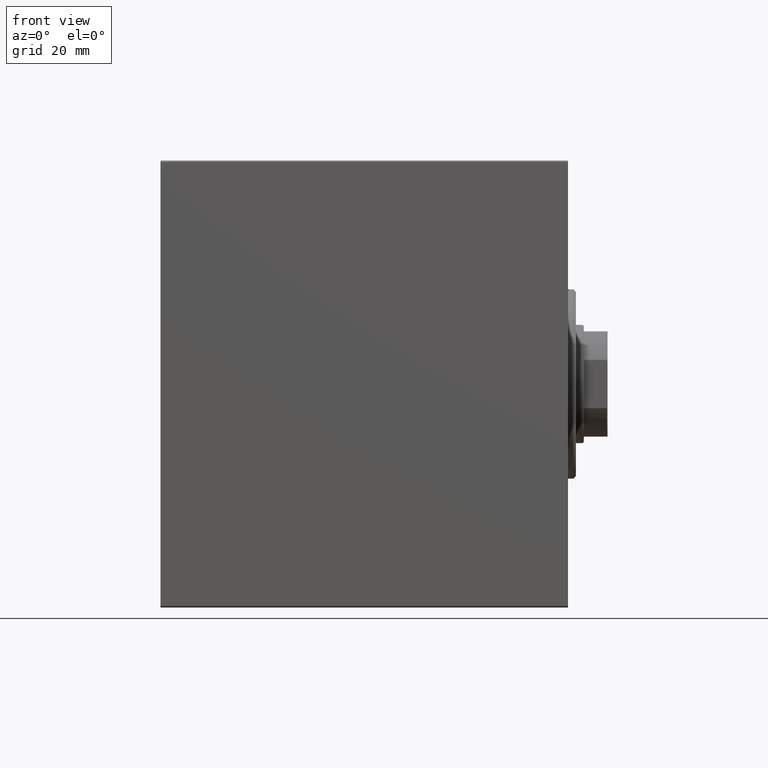
[diagram: clean part render]
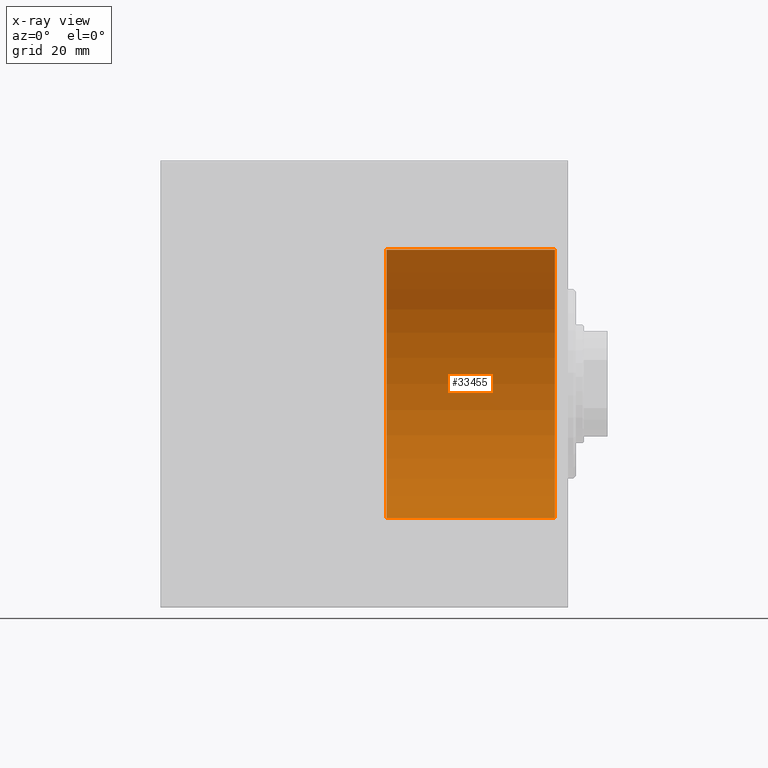
[diagram: x-ray — body ghosted, one internal face saturated and labeled with its STEP entity id]
A machine part, front view, then the same camera in x-ray: the body is ghosted and one INTERNAL B-rep face — a face not visible from any outside direction — is saturated and labeled: STEP entity #33455.
In plain terms, the highlighted cylindrical surface (partial cylindrical patch) has radius 51 mm, axis along (1, 0, 0).
Its self-contained STEP definition (entity closure, byte-faithful):
#469 = VERTEX_POINT ( 'NONE', #17164 ) ;
#743 = VERTEX_POINT ( 'NONE', #23395 ) ;
#1513 = VERTEX_POINT ( 'NONE', #31990 ) ;
#4595 = AXIS2_PLACEMENT_3D ( 'NONE', #7264, #33540, #9950 ) ;
#5583 = CARTESIAN_POINT ( 'NONE',  ( -69.00000000000000000, 6.245698675651500444E-15, 51.00000000000000000 ) ) ;
#6395 = DIRECTION ( 'NONE',  ( 0.000000000000000000, 0.000000000000000000, -1.000000000000000000 ) ) ;
#7264 = CARTESIAN_POINT ( 'NONE',  ( -5.000000000000000000, 0.000000000000000000, 0.000000000000000000 ) ) ;
#8480 = CARTESIAN_POINT ( 'NONE',  ( -69.00000000000000000, 0.000000000000000000, -51.00000000000000000 ) ) ;
#9823 = CARTESIAN_POINT ( 'NONE',  ( -69.00000000000000000, 0.000000000000000000, 0.000000000000000000 ) ) ;
#9950 = DIRECTION ( 'NONE',  ( 0.000000000000000000, 0.000000000000000000, 1.000000000000000000 ) ) ;
#12692 = CYLINDRICAL_SURFACE ( 'NONE', #38717, 51.00000000000000000 ) ;
#16135 = LINE ( 'NONE', #5583, #44155 ) ;
#17164 = CARTESIAN_POINT ( 'NONE',  ( -69.00000000000000000, 6.245698675651500444E-15, 51.00000000000000000 ) ) ;
#19405 = EDGE_CURVE ( 'NONE', #1513, #38790, #33278, .T. ) ;
#19659 = FACE_OUTER_BOUND ( 'NONE', #25599, .T. ) ;
#19723 = DIRECTION ( 'NONE',  ( 1.000000000000000000, -0.000000000000000000, -0.000000000000000000 ) ) ;
#20235 = ORIENTED_EDGE ( 'NONE', *, *, #38504, .F. ) ;
#22172 = DIRECTION ( 'NONE',  ( 1.000000000000000000, -0.000000000000000000, -0.000000000000000000 ) ) ;
#23303 = DIRECTION ( 'NONE',  ( -1.000000000000000000, 0.000000000000000000, 0.000000000000000000 ) ) ;
#23395 = CARTESIAN_POINT ( 'NONE',  ( -69.00000000000000000, 0.000000000000000000, -51.00000000000000000 ) ) ;
#24341 = EDGE_CURVE ( 'NONE', #469, #1513, #16135, .T. ) ;
#24559 = CARTESIAN_POINT ( 'NONE',  ( -5.000000000000000000, 0.000000000000000000, -51.00000000000000000 ) ) ;
#24739 = ORIENTED_EDGE ( 'NONE', *, *, #32905, .F. ) ;
#25599 = EDGE_LOOP ( 'NONE', ( #20235, #41125, #35869, #24739 ) ) ;
#26601 = CARTESIAN_POINT ( 'NONE',  ( -69.00000000000000000, 0.000000000000000000, 0.000000000000000000 ) ) ;
#29536 = AXIS2_PLACEMENT_3D ( 'NONE', #9823, #23303, #44398 ) ;
#29791 = LINE ( 'NONE', #8480, #35854 ) ;
#31990 = CARTESIAN_POINT ( 'NONE',  ( -5.000000000000000000, 6.245698675651500444E-15, 51.00000000000000000 ) ) ;
#32905 = EDGE_CURVE ( 'NONE', #743, #38790, #29791, .T. ) ;
#33278 = CIRCLE ( 'NONE', #4595, 51.00000000000000000 ) ;
#33455 = ADVANCED_FACE ( 'NONE', ( #19659 ), #12692, .T. ) ;
#33540 = DIRECTION ( 'NONE',  ( -1.000000000000000000, 0.000000000000000000, 0.000000000000000000 ) ) ;
#33869 = CIRCLE ( 'NONE', #29536, 51.00000000000000000 ) ;
#35854 = VECTOR ( 'NONE', #22172, 1000.000000000000000 ) ;
#35869 = ORIENTED_EDGE ( 'NONE', *, *, #19405, .T. ) ;
#37148 = DIRECTION ( 'NONE',  ( 1.000000000000000000, -0.000000000000000000, -0.000000000000000000 ) ) ;
#38504 = EDGE_CURVE ( 'NONE', #469, #743, #33869, .T. ) ;
#38717 = AXIS2_PLACEMENT_3D ( 'NONE', #26601, #37148, #6395 ) ;
#38790 = VERTEX_POINT ( 'NONE', #24559 ) ;
#41125 = ORIENTED_EDGE ( 'NONE', *, *, #24341, .T. ) ;
#44155 = VECTOR ( 'NONE', #19723, 1000.000000000000000 ) ;
#44398 = DIRECTION ( 'NONE',  ( 0.000000000000000000, 0.000000000000000000, 1.000000000000000000 ) ) ;